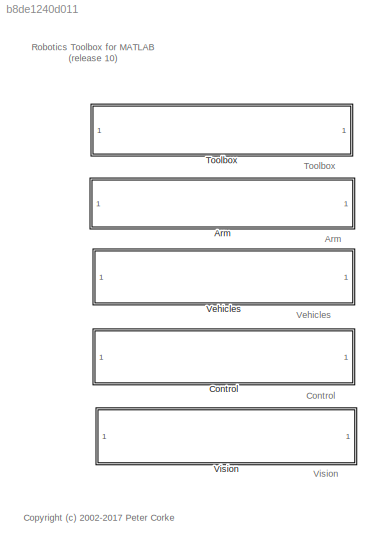
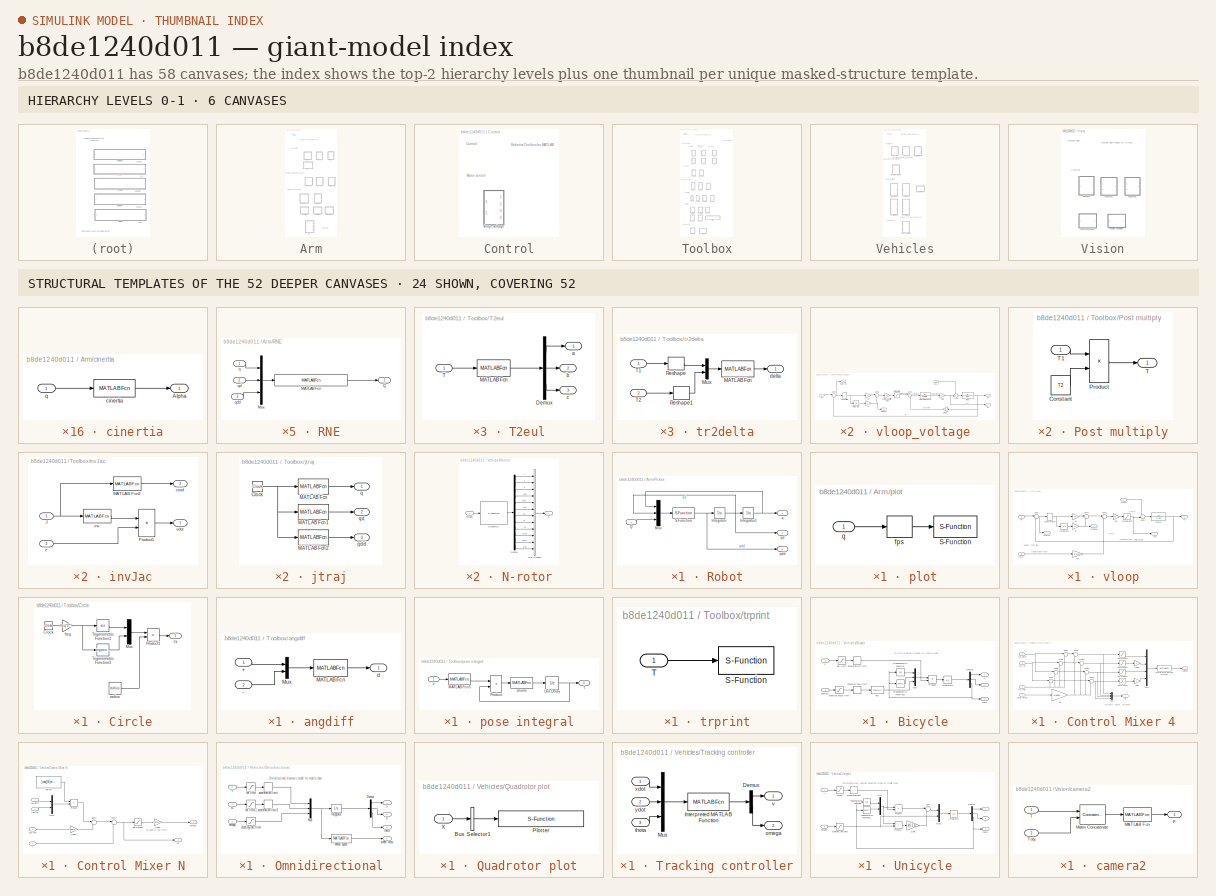
[diagram: thumbnail index - top-2 hierarchy levels (6 canvases) + 24 structural-template representatives of the remaining 52 canvases]
MODEL slx_b8de1240d011
KIND library
CONFIG AbsTol = auto
CONFIG EnableMultiTasking = on
CONFIG FixedStep = auto
CONFIG MaxStep = auto
CONFIG MinStep = auto
CONFIG RelTol = 1e-3
CONFIG SampleTimeConstraint = Unconstrained
CONFIG Solver = ode45
CONFIG SolverName = ode45
CONFIG StartTime = 0.0
CONFIG StopTime = 10
BLOCK [SubSystem] Arm
  Ports = []
  RequestExecContextInheritance = off
  Variant = off
BLOCK [SubSystem] Arm/RNE
  Ports = [3, 1]
  RequestExecContextInheritance = off
  Variant = off
BLOCK [MATLABFcn] Arm/RNE/MATLAB Fcn
  MATLABFcn = rne(robot, u(1:n)', u(n+1:2*n)', u(2*n+1:3*n)')
  OutputDimensions = robot.n
  Ports = [1, 1]
BLOCK [Mux] Arm/RNE/Mux
  DisplayOption = bar
  Inputs = 3
  Ports = [3, 1]
BLOCK [Outport] Arm/RNE/Q
  IconDisplay = Port number
BLOCK [Inport] Arm/RNE/q
  IconDisplay = Port number
BLOCK [Inport] Arm/RNE/qd
  IconDisplay = Port number
  Port = 2
BLOCK [Inport] Arm/RNE/qdd
  IconDisplay = Port number
  Port = 3
BLOCK [SubSystem] Arm/Robot
  Ports = [1, 3]
  RequestExecContextInheritance = off
  Variant = off
BLOCK [Integrator] Arm/Robot/Integrator
  Ports = [1, 1]
BLOCK [Integrator] Arm/Robot/Integrator1
  InitialCondition = q0
  Ports = [1, 1]
BLOCK [Mux] Arm/Robot/Mux
  DisplayOption = bar
  Inputs = 3
  Ports = [3, 1]
BLOCK [Inport] Arm/Robot/Q
  IconDisplay = Port number
BLOCK [S-Function] Arm/Robot/S-Function
  EnableBusSupport = off
  FunctionName = slaccel
  Parameters = robot
  Ports = [1, 1]
  SFcnIsStateOwnerBlock = off
  SFunctionDeploymentMode = off
BLOCK [Outport] Arm/Robot/q
  IconDisplay = Port number
BLOCK [Outport] Arm/Robot/qd
  IconDisplay = Port number
  Port = 2
BLOCK [Outport] Arm/Robot/qdd
  IconDisplay = Port number
  Port = 3
BLOCK [SubSystem] Arm/cinertia
  Ports = [1, 1]
  RequestExecContextInheritance = off
  Variant = off
BLOCK [Outport] Arm/cinertia/Alpha
  IconDisplay = Port number
BLOCK [MATLABFcn] Arm/cinertia/cinertia
  MATLABFcn = cinertia(robot,u')
  Output1D = off
  OutputDimensions = [6 6]
  Ports = [1, 1]
BLOCK [Inport] Arm/cinertia/q
  IconDisplay = Port number
BLOCK [SubSystem] Arm/fkine
  Ports = [1, 1]
  RequestExecContextInheritance = off
  Variant = off
BLOCK [MATLABFcn] Arm/fkine/MATLAB Fcn
  MATLABFcn = double(fkine(robot,u))
  Output1D = off
  OutputDimensions = [4 4]
  Ports = [1, 1]
BLOCK [Outport] Arm/fkine/T
  IconDisplay = Port number
BLOCK [Inport] Arm/fkine/q
  IconDisplay = Port number
BLOCK [SubSystem] Arm/gravload
  Ports = [1, 1]
  RequestExecContextInheritance = off
  Variant = off
BLOCK [Outport] Arm/gravload/g
  IconDisplay = Port number
BLOCK [MATLABFcn] Arm/gravload/gravload
  MATLABFcn = gravload(robot,u')
  Output1D = off
  OutputDimensions = [1 robot.n]
  Ports = [1, 1]
BLOCK [Inport] Arm/gravload/q
  IconDisplay = Port number
BLOCK [SubSystem] Arm/ijacob
  Ports = [1, 1]
  RequestExecContextInheritance = off
  Variant = off
BLOCK [Inport] Arm/ijacob/J
  IconDisplay = Port number
BLOCK [Outport] Arm/ijacob/Ji
  IconDisplay = Port number
BLOCK [MATLABFcn] Arm/ijacob/inverse jacobian
  MATLABFcn = inv(u)
  Output1D = off
  Ports = [1, 1]
BLOCK [SubSystem] Arm/ikine
  Ports = [1, 1]
  RequestExecContextInheritance = off
  Variant = off
BLOCK [Inport] Arm/ikine/T
  IconDisplay = Port number
BLOCK [MATLABFcn] Arm/ikine/ikine
  MATLABFcn = robot.ikine(u, q0, M, opt{:})
  Ports = [1, 1]
BLOCK [Outport] Arm/ikine/q
  IconDisplay = Port number
BLOCK [SubSystem] Arm/ikine6s
  Ports = [1, 1]
  RequestExecContextInheritance = off
  Variant = off
BLOCK [Inport] Arm/ikine6s/T
  IconDisplay = Port number
BLOCK [MATLABFcn] Arm/ikine6s/ikine6s
  MATLABFcn = robot.ikine6s(u,conf)
  Ports = [1, 1]
BLOCK [Outport] Arm/ikine6s/q
  IconDisplay = Port number
BLOCK [SubSystem] Arm/inertia
  Ports = [1, 1]
  RequestExecContextInheritance = off
  Variant = off
BLOCK [Outport] Arm/inertia/J
  IconDisplay = Port number
BLOCK [MATLABFcn] Arm/inertia/inertia
  MATLABFcn = inertia(robot,u')
  Output1D = off
  OutputDimensions = [robot.n robot.n]
  Ports = [1, 1]
BLOCK [Inport] Arm/inertia/q
  IconDisplay = Port number
BLOCK [SubSystem] Arm/jacob0 
  Ports = [1, 1]
  RequestExecContextInheritance = off
  Variant = off
BLOCK [Outport] Arm/jacob0 /J
  IconDisplay = Port number
BLOCK [MATLABFcn] Arm/jacob0 /MATLAB Fcn
  MATLABFcn = jacob0(robot,u)
  Output1D = off
  OutputDimensions = [6 n]
  Ports = [1, 1]
BLOCK [Inport] Arm/jacob0 /q
  IconDisplay = Port number
BLOCK [SubSystem] Arm/jacobn
  Ports = [1, 1]
  RequestExecContextInheritance = off
  Variant = off
BLOCK [Outport] Arm/jacobn/J
  IconDisplay = Port number
BLOCK [MATLABFcn] Arm/jacobn/MATLAB Fcn
  MATLABFcn = jacobe(robot,u)
  Output1D = off
  OutputDimensions = [6 n]
  Ports = [1, 1]
BLOCK [Inport] Arm/jacobn/q
  IconDisplay = Port number
BLOCK [SubSystem] Arm/plot
  Ports = [1]
  RequestExecContextInheritance = off
  Variant = off
BLOCK [S-Function] Arm/plot/S-Function
  EnableBusSupport = off
  FunctionName = slplotbot
  Parameters = robot,fps,holdplot
  Ports = [1]
  SFcnIsStateOwnerBlock = off
  SFunctionDeploymentMode = off
BLOCK [ZeroOrderHold] Arm/plot/fps
  SampleTime = 1/fps
BLOCK [Inport] Arm/plot/q
  IconDisplay = Port number
BLOCK [SubSystem] Arm/vloop
  Ports = [3, 4]
  RequestExecContextInheritance = off
  Variant = off
BLOCK [Outport] Arm/vloop/Integral
  IconDisplay = Port number
  Port = 4
BLOCK [Integrator] Arm/vloop/Integrator
  Ports = [1, 1]
BLOCK [Gain] Arm/vloop/Kff
  Gain = 1/Km
  OutDataTypeStr = Inherit: Inherit via internal rule
  ParamDataTypeStr = Inherit: Inherit via internal rule
  SaturateOnIntegerOverflow = off
BLOCK [Gain] Arm/vloop/Ki
  Gain = Ki
  OutDataTypeStr = Inherit: Inherit via internal rule
  ParamDataTypeStr = Inherit: Inherit via internal rule
  SaturateOnIntegerOverflow = off
BLOCK [Gain] Arm/vloop/Km
  Gain = Km
  OutDataTypeStr = Inherit: Inherit via internal rule
  ParamDataTypeStr = Inherit: Inherit via internal rule
  SaturateOnIntegerOverflow = off
BLOCK [Gain] Arm/vloop/Kv
  Gain = Kv
  OutDataTypeStr = Inherit: Inherit via internal rule
  ParamDataTypeStr = Inherit: Inherit via internal rule
  SaturateOnIntegerOverflow = off
BLOCK [Sum] Arm/vloop/Sum
  IconShape = round
  InputSameDT = off
  Inputs = |+-
  OutDataTypeStr = Inherit: Inherit via internal rule
  Ports = [2, 1]
  SaturateOnIntegerOverflow = off
BLOCK [Sum] Arm/vloop/Sum1
  IconShape = round
  InputSameDT = off
  Inputs = -+|
  OutDataTypeStr = Inherit: Inherit via internal rule
  Ports = [2, 1]
  SaturateOnIntegerOverflow = off
BLOCK [Sum] Arm/vloop/Sum2
  IconShape = round
  InputSameDT = off
  Inputs = |++
  OutDataTypeStr = Inherit: Inherit via internal rule
  Ports = [2, 1]
  SaturateOnIntegerOverflow = off
BLOCK [Sum] Arm/vloop/Sum3
  IconShape = round
  InputSameDT = off
  Inputs = |++
  OutDataTypeStr = Inherit: Inherit via internal rule
  Ports = [2, 1]
  SaturateOnIntegerOverflow = off
BLOCK [Delay] Arm/vloop/control time
  DelayLength = 1
  InputPortMap = u0
  InputProcessing = Inherited
  Ports = [1, 1]
  SampleTime = T
  UserDataPersistent = on
BLOCK [TransferFcn] Arm/vloop/motor
  ContinuousStateAttributes = 'qd'
  Denominator = [J B]
BLOCK [Outport] Arm/vloop/tau
  IconDisplay = Port number
  Port = 3
BLOCK [Inport] Arm/vloop/tau_d
  IconDisplay = Port number
  Port = 2
BLOCK [Inport] Arm/vloop/tau_ff
  IconDisplay = Port number
  Port = 3
BLOCK [Saturate] Arm/vloop/torque limit
  InputPortMap = u0
  LowerLimit = -tau_max
  Ports = [1, 1]
  UpperLimit = tau_max
BLOCK [Outport] Arm/vloop/w
  IconDisplay = Port number
BLOCK [Outport] Arm/vloop/w error
  IconDisplay = Port number
  Port = 2
BLOCK [Inport] Arm/vloop/w*
  IconDisplay = Port number
BLOCK [SubSystem] Control
  AncestorBlock = roblocks/Vehicles
  Ports = []
  RequestExecContextInheritance = off
  Variant = off
BLOCK [SubSystem] Control/vloop_voltage
  Ports = [2, 4]
  RequestExecContextInheritance = off
  Variant = off
BLOCK [Gain] Control/vloop_voltage/Gain
  Gain = Km
  OutDataTypeStr = Inherit: Inherit via internal rule
  ParamDataTypeStr = Inherit: Inherit via internal rule
  SaturateOnIntegerOverflow = off
BLOCK [Gain] Control/vloop_voltage/Gain1
  Gain = Km
  OutDataTypeStr = Inherit: Inherit via internal rule
  ParamDataTypeStr = Inherit: Inherit via internal rule
  SaturateOnIntegerOverflow = off
BLOCK [Integrator] Control/vloop_voltage/Integrator
  Ports = [1, 1]
BLOCK [Gain] Control/vloop_voltage/Ki
  Gain = Ki
  OutDataTypeStr = Inherit: Inherit via internal rule
  ParamDataTypeStr = Inherit: Inherit via internal rule
  SaturateOnIntegerOverflow = off
BLOCK [Gain] Control/vloop_voltage/Kv
  Gain = Kv
  OutDataTypeStr = Inherit: Inherit via internal rule
  ParamDataTypeStr = Inherit: Inherit via internal rule
  SaturateOnIntegerOverflow = off
BLOCK [TransferFcn] Control/vloop_voltage/Motor impedance
  Denominator = [Lm Rm]
BLOCK [Sum] Control/vloop_voltage/Sum
  IconShape = round
  InputSameDT = off
  Inputs = |+-
  OutDataTypeStr = Inherit: Inherit via internal rule
  Ports = [2, 1]
  SaturateOnIntegerOverflow = off
BLOCK [Sum] Control/vloop_voltage/Sum1
  IconShape = round
  InputSameDT = off
  Inputs = -+|
  OutDataTypeStr = Inherit: Inherit via internal rule
  Ports = [2, 1]
  SaturateOnIntegerOverflow = off
BLOCK [Sum] Control/vloop_voltage/Sum2
  IconShape = round
  InputSameDT = off
  Inputs = |++
  OutDataTypeStr = Inherit: Inherit via internal rule
  Ports = [2, 1]
  SaturateOnIntegerOverflow = off
BLOCK [Sum] Control/vloop_voltage/Sum3
  IconShape = round
  InputSameDT = off
  Inputs = |+-
  OutDataTypeStr = Inherit: Inherit via internal rule
  Ports = [2, 1]
  SaturateOnIntegerOverflow = off
BLOCK [Delay] Control/vloop_voltage/control time
  DelayLength = 1
  InputPortMap = u0
  InputProcessing = Inherited
  Ports = [1, 1]
  SampleTime = T
  UserDataPersistent = on
BLOCK [Outport] Control/vloop_voltage/integral
  IconDisplay = Port number
  Port = 4
BLOCK [TransferFcn] Control/vloop_voltage/motor
  ContinuousStateAttributes = 'qd'
  Denominator = [J B]
BLOCK [Outport] Control/vloop_voltage/qd
  IconDisplay = Port number
  Port = 2
BLOCK [Outport] Control/vloop_voltage/qd error
  IconDisplay = Port number
BLOCK [Inport] Control/vloop_voltage/qd*
  IconDisplay = Port number
BLOCK [Outport] Control/vloop_voltage/tau
  IconDisplay = Port number
  Port = 3
BLOCK [Inport] Control/vloop_voltage/tau_d
  IconDisplay = Port number
  Port = 2
BLOCK [Gain] Control/vloop_voltage/voltage amplifier gain
  Gain = Ka
  OutDataTypeStr = Inherit: Inherit via internal rule
  ParamDataTypeStr = Inherit: Inherit via internal rule
  SaturateOnIntegerOverflow = off
BLOCK [Saturate] Control/vloop_voltage/voltage limit
  InputPortMap = u0
  LowerLimit = -v_max
  Ports = [1, 1]
  UpperLimit = v_max
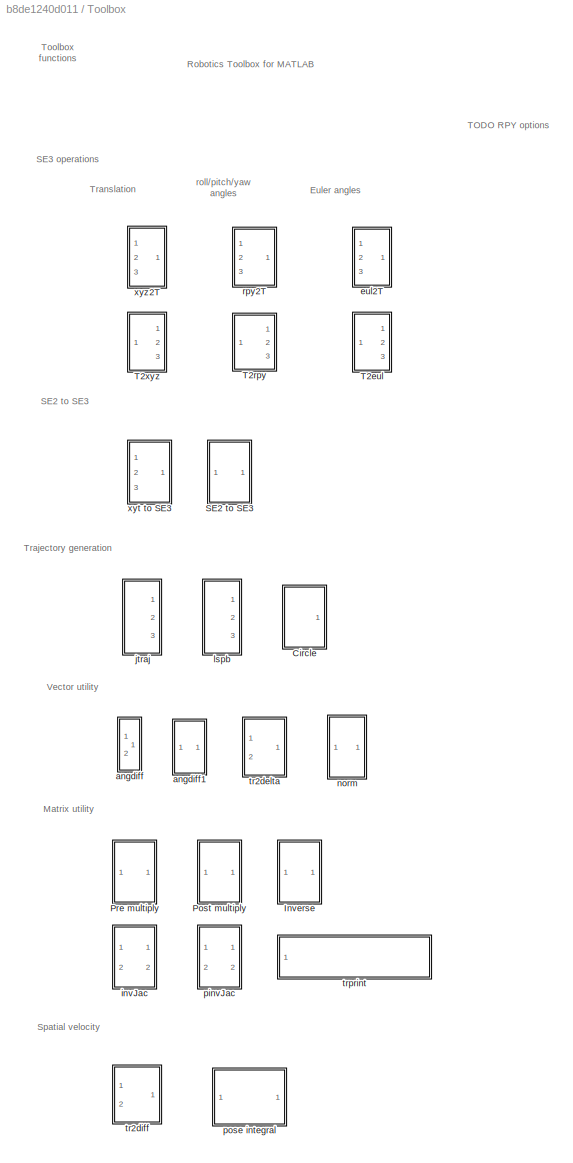
BLOCK [SubSystem] Toolbox
  Ports = []
  RequestExecContextInheritance = off
  Variant = off
BLOCK [SubSystem] Toolbox/Circle
  Ports = [0, 1]
  RequestExecContextInheritance = off
  Variant = off
BLOCK [Clock] Toolbox/Circle/Clock
BLOCK [Mux] Toolbox/Circle/Mux
  DisplayOption = bar
  Inputs = 2
  Ports = [2, 1]
BLOCK [Product] Toolbox/Circle/Product1
  InputSameDT = off
  OutDataTypeStr = Inherit: Inherit via internal rule
  Ports = [2, 1]
  SaturateOnIntegerOverflow = off
BLOCK [Trigonometry] Toolbox/Circle/Trigonometric Function1
  Operator = cos
  Ports = [1, 1]
BLOCK [Trigonometry] Toolbox/Circle/Trigonometric Function3
  Ports = [1, 1]
BLOCK [Gain] Toolbox/Circle/freq
  Gain = freq*2*pi
  OutDataTypeStr = Inherit: Inherit via internal rule
  ParamDataTypeStr = Inherit: Inherit via internal rule
  SaturateOnIntegerOverflow = off
BLOCK [Constant] Toolbox/Circle/radius
  Value = radius
BLOCK [Outport] Toolbox/Circle/xy
  IconDisplay = Port number
BLOCK [SubSystem] Toolbox/Inverse
  Ports = [1, 1]
  RequestExecContextInheritance = off
  Variant = off
BLOCK [MATLABFcn] Toolbox/Inverse/MATLAB Fcn
  MATLABFcn = inv(u)
  Output1D = off
  OutputDimensions = [4,4]
  Ports = [1, 1]
BLOCK [Inport] Toolbox/Inverse/T
  IconDisplay = Port number
BLOCK [Outport] Toolbox/Inverse/invT
  IconDisplay = Port number
BLOCK [SubSystem] Toolbox/Post multiply
  Ports = [1, 1]
  RequestExecContextInheritance = off
  Variant = off
BLOCK [Constant] Toolbox/Post multiply/Constant
  Value = T2
BLOCK [Product] Toolbox/Post multiply/Product
  InputSameDT = off
  Multiplication = Matrix(*)
  OutDataTypeStr = Inherit: Inherit via internal rule
  Ports = [2, 1]
  SaturateOnIntegerOverflow = off
BLOCK [Outport] Toolbox/Post multiply/T
  IconDisplay = Port number
BLOCK [Inport] Toolbox/Post multiply/T1
  IconDisplay = Port number
BLOCK [SubSystem] Toolbox/Pre multiply
  Ports = [1, 1]
  RequestExecContextInheritance = off
  Variant = off
BLOCK [Constant] Toolbox/Pre multiply/Constant
  Value = T
  VectorParams1D = off
BLOCK [Product] Toolbox/Pre multiply/Product
  InputSameDT = off
  Multiplication = Matrix(*)
  OutDataTypeStr = Inherit: Inherit via internal rule
  Ports = [2, 1]
  SaturateOnIntegerOverflow = off
BLOCK [Outport] Toolbox/Pre multiply/T
  IconDisplay = Port number
BLOCK [Inport] Toolbox/Pre multiply/T2
  IconDisplay = Port number
BLOCK [SubSystem] Toolbox/SE2 to SE3
  AncestorBlock = roblocks/Toolbox/SE2 to SE3
  Ports = [1, 1]
  RequestExecContextInheritance = off
  Variant = off
BLOCK [Inport] Toolbox/SE2 to SE3/SE2
  IconDisplay = Port number
BLOCK [MATLABFcn] Toolbox/SE2 to SE3/SE2->SE3
  MATLABFcn = transl(u(1), u(2), 0)*trotz(u(3))
  Output1D = off
  Ports = [1, 1]
BLOCK [Outport] Toolbox/SE2 to SE3/T
  IconDisplay = Port number
BLOCK [SubSystem] Toolbox/T2eul
  Ports = [1, 3]
  RequestExecContextInheritance = off
  Variant = off
BLOCK [Demux] Toolbox/T2eul/Demux
  Outputs = 3
  Ports = [1, 3]
BLOCK [MATLABFcn] Toolbox/T2eul/MATLAB Fcn
  MATLABFcn = tr2eul(u)
  OutputDimensions = 3
  Ports = [1, 1]
BLOCK [Inport] Toolbox/T2eul/T
  IconDisplay = Port number
BLOCK [Outport] Toolbox/T2eul/a
  IconDisplay = Port number
BLOCK [Outport] Toolbox/T2eul/b
  IconDisplay = Port number
  Port = 2
BLOCK [Outport] Toolbox/T2eul/c
  IconDisplay = Port number
  Port = 3
BLOCK [SubSystem] Toolbox/T2rpy
  Ports = [1, 3]
  RequestExecContextInheritance = off
  Variant = off
BLOCK [Demux] Toolbox/T2rpy/Demux
  Outputs = 3
  Ports = [1, 3]
BLOCK [MATLABFcn] Toolbox/T2rpy/MATLAB Fcn
  MATLABFcn = tr2rpy(u)
  OutputDimensions = 3
  Ports = [1, 1]
BLOCK [Inport] Toolbox/T2rpy/T
  IconDisplay = Port number
BLOCK [Outport] Toolbox/T2rpy/pitch
  IconDisplay = Port number
  Port = 2
BLOCK [Outport] Toolbox/T2rpy/roll
  IconDisplay = Port number
BLOCK [Outport] Toolbox/T2rpy/yaw
  IconDisplay = Port number
  Port = 3
BLOCK [SubSystem] Toolbox/T2xyz
  Ports = [1, 3]
  RequestExecContextInheritance = off
  Variant = off
BLOCK [Demux] Toolbox/T2xyz/Demux
  Outputs = 3
  Ports = [1, 3]
BLOCK [MATLABFcn] Toolbox/T2xyz/MATLAB Fcn
  MATLABFcn = transl(u)
  OutputDimensions = 3
  Ports = [1, 1]
BLOCK [Inport] Toolbox/T2xyz/T
  IconDisplay = Port number
BLOCK [Outport] Toolbox/T2xyz/x
  IconDisplay = Port number
BLOCK [Outport] Toolbox/T2xyz/y
  IconDisplay = Port number
  Port = 2
BLOCK [Outport] Toolbox/T2xyz/z
  IconDisplay = Port number
  Port = 3
BLOCK [SubSystem] Toolbox/angdiff
  Ports = [2, 1]
  RequestExecContextInheritance = off
  Variant = off
BLOCK [Inport] Toolbox/angdiff/+
  IconDisplay = Port number
BLOCK [Inport] Toolbox/angdiff/-
  IconDisplay = Port number
  Port = 2
BLOCK [MATLABFcn] Toolbox/angdiff/MATLAB Fcn
  MATLABFcn = angdiff(u(1), u(2))
  Ports = [1, 1]
BLOCK [Mux] Toolbox/angdiff/Mux
  DisplayOption = bar
  Inputs = 2
  Ports = [2, 1]
BLOCK [Outport] Toolbox/angdiff/d
  IconDisplay = Port number
BLOCK [SubSystem] Toolbox/angdiff1
  AncestorBlock = roblocks/Toolbox/angdiff
  Ports = [1, 1]
  RequestExecContextInheritance = off
  Variant = off
BLOCK [Inport] Toolbox/angdiff1/+
  IconDisplay = Port number
BLOCK [MATLABFcn] Toolbox/angdiff1/MATLAB Fcn
  MATLABFcn = angdiff(u)
  Ports = [1, 1]
BLOCK [Outport] Toolbox/angdiff1/d
  IconDisplay = Port number
BLOCK [SubSystem] Toolbox/eul2T
  Ports = [3, 1]
  RequestExecContextInheritance = off
  Variant = off
BLOCK [MATLABFcn] Toolbox/eul2T/MATLAB Fcn
  MATLABFcn = eul2tr(u')
  Output1D = off
  OutputDimensions = [4 4]
  Ports = [1, 1]
BLOCK [Mux] Toolbox/eul2T/Mux
  DisplayOption = bar
  Inputs = 3
  Ports = [3, 1]
BLOCK [Outport] Toolbox/eul2T/T
  IconDisplay = Port number
BLOCK [Inport] Toolbox/eul2T/a
  IconDisplay = Port number
BLOCK [Inport] Toolbox/eul2T/b
  IconDisplay = Port number
  Port = 2
BLOCK [Inport] Toolbox/eul2T/c
  IconDisplay = Port number
  Port = 3
BLOCK [SubSystem] Toolbox/invJac
  Ports = [2, 2]
  RequestExecContextInheritance = off
  Variant = off
BLOCK [Inport] Toolbox/invJac/J
  IconDisplay = Port number
BLOCK [MATLABFcn] Toolbox/invJac/MATLAB Fcn2
  MATLABFcn = cond(u)
  Output1D = off
  Ports = [1, 1]
BLOCK [Product] Toolbox/invJac/Product1
  Multiplication = Matrix(*)
  Ports = [2, 1]
BLOCK [Outport] Toolbox/invJac/cond
  IconDisplay = Port number
  Port = 2
BLOCK [Inport] Toolbox/invJac/e
  IconDisplay = Port number
  Port = 2
BLOCK [MATLABFcn] Toolbox/invJac/inv
  MATLABFcn = pinv(u)
  Output1D = off
  Ports = [1, 1]
BLOCK [Outport] Toolbox/invJac/vdot
  IconDisplay = Port number
BLOCK [SubSystem] Toolbox/jtraj
  Ports = [0, 3]
  RequestExecContextInheritance = off
  Variant = off
BLOCK [Clock] Toolbox/jtraj/Clock
BLOCK [MATLABFcn] Toolbox/jtraj/MATLAB Fcn
  MATLABFcn = interp1(t,q,min(u,tmax))
  OutputDimensions = n
  Ports = [1, 1]
  SampleTime = ts
BLOCK [MATLABFcn] Toolbox/jtraj/MATLAB Fcn1
  MATLABFcn = interp1(t,qd,min(u,tmax))
  OutputDimensions = n
  Ports = [1, 1]
  SampleTime = ts
BLOCK [MATLABFcn] Toolbox/jtraj/MATLAB Fcn2
  MATLABFcn = interp1(t,qdd,min(u,tmax))
  OutputDimensions = n
  Ports = [1, 1]
  SampleTime = ts
BLOCK [Outport] Toolbox/jtraj/q
  IconDisplay = Port number
BLOCK [Outport] Toolbox/jtraj/qd
  IconDisplay = Port number
  Port = 2
BLOCK [Outport] Toolbox/jtraj/qdd
  IconDisplay = Port number
  Port = 3
BLOCK [SubSystem] Toolbox/lspb
  Ports = [0, 3]
  RequestExecContextInheritance = off
  Variant = off
BLOCK [Clock] Toolbox/lspb/Clock
BLOCK [MATLABFcn] Toolbox/lspb/MATLAB Fcn
  MATLABFcn = interp1(t,q,u)
  OutputDimensions = n
  Ports = [1, 1]
BLOCK [MATLABFcn] Toolbox/lspb/MATLAB Fcn1
  MATLABFcn = interp1(t,qd,u)
  OutputDimensions = n
  Ports = [1, 1]
BLOCK [MATLABFcn] Toolbox/lspb/MATLAB Fcn2
  MATLABFcn = interp1(t,qdd,u)
  OutputDimensions = n
  Ports = [1, 1]
BLOCK [Outport] Toolbox/lspb/q
  IconDisplay = Port number
BLOCK [Outport] Toolbox/lspb/qd
  IconDisplay = Port number
  Port = 2
BLOCK [Outport] Toolbox/lspb/qdd
  IconDisplay = Port number
  Port = 3
BLOCK [SubSystem] Toolbox/norm
  Ports = [1, 1]
  RequestExecContextInheritance = off
  Variant = off
BLOCK [Outport] Toolbox/norm/n
  IconDisplay = Port number
BLOCK [MATLABFcn] Toolbox/norm/norm
  MATLABFcn = norm(u)
  Ports = [1, 1]
BLOCK [Inport] Toolbox/norm/v
  IconDisplay = Port number
BLOCK [SubSystem] Toolbox/pinvJac
  Ports = [2, 2]
  RequestExecContextInheritance = off
  Variant = off
BLOCK [Inport] Toolbox/pinvJac/J
  IconDisplay = Port number
BLOCK [MATLABFcn] Toolbox/pinvJac/MATLAB Fcn2
  MATLABFcn = cond(u)
  Output1D = off
  Ports = [1, 1]
BLOCK [Product] Toolbox/pinvJac/Product1
  Multiplication = Matrix(*)
  Ports = [2, 1]
BLOCK [Outport] Toolbox/pinvJac/cond
  IconDisplay = Port number
  Port = 2
BLOCK [Inport] Toolbox/pinvJac/e
  IconDisplay = Port number
  Port = 2
BLOCK [MATLABFcn] Toolbox/pinvJac/pinv
  MATLABFcn = pinv(u)
  Output1D = off
  Ports = [1, 1]
BLOCK [Outport] Toolbox/pinvJac/vdot
  IconDisplay = Port number
BLOCK [SubSystem] Toolbox/pose integral
  Ports = [1, 1]
  RequestExecContextInheritance = off
  Variant = off
BLOCK [MATLABFcn] Toolbox/pose integral/MATLAB Fcn3
  MATLABFcn = delta2tr(u*dt)
  Output1D = off
  Ports = [1, 1]
BLOCK [Product] Toolbox/pose integral/Product
  InputSameDT = off
  Multiplication = Matrix(*)
  OutDataTypeStr = Inherit: Inherit via internal rule
  Ports = [2, 1]
  SaturateOnIntegerOverflow = off
BLOCK [Outport] Toolbox/pose integral/T
  IconDisplay = Port number
BLOCK [UnitDelay] Toolbox/pose integral/Unit Delay
  InitialCondition = T0
  SampleTime = dt
BLOCK [MATLABFcn] Toolbox/pose integral/trnorm
  MATLABFcn = trnorm(u)
  Output1D = off
  Ports = [1, 1]
BLOCK [Inport] Toolbox/pose integral/v
  IconDisplay = Port number
BLOCK [SubSystem] Toolbox/rpy2T
  Ports = [3, 1]
  RequestExecContextInheritance = off
  Variant = off
BLOCK [MATLABFcn] Toolbox/rpy2T/MATLAB Fcn
  MATLABFcn = rpy2tr(u')
  Output1D = off
  OutputDimensions = [4 4]
  Ports = [1, 1]
BLOCK [Mux] Toolbox/rpy2T/Mux
  DisplayOption = bar
  Inputs = 3
  Ports = [3, 1]
BLOCK [Outport] Toolbox/rpy2T/T
  IconDisplay = Port number
BLOCK [Inport] Toolbox/rpy2T/pitch
  IconDisplay = Port number
  Port = 2
BLOCK [Inport] Toolbox/rpy2T/roll
  IconDisplay = Port number
BLOCK [Inport] Toolbox/rpy2T/yaw
  IconDisplay = Port number
  Port = 3
BLOCK [SubSystem] Toolbox/tr2delta
  AncestorBlock = roblocks/Toolbox/T2rpy
  Ports = [2, 1]
  RequestExecContextInheritance = off
  Variant = off
BLOCK [MATLABFcn] Toolbox/tr2delta/MATLAB Fcn
  MATLABFcn = tr2delta(reshape(u(1:16),4,4), reshape(u(17:32),4,4))
  OutputDimensions = 6
  Ports = [1, 1]
BLOCK [Mux] Toolbox/tr2delta/Mux
  DisplayOption = bar
  Inputs = 2
  Ports = [2, 1]
BLOCK [Reshape] Toolbox/tr2delta/Reshape
  Ports = [1, 1]
BLOCK [Reshape] Toolbox/tr2delta/Reshape1
  Ports = [1, 1]
BLOCK [Inport] Toolbox/tr2delta/T1
  IconDisplay = Port number
BLOCK [Inport] Toolbox/tr2delta/T2
  IconDisplay = Port number
  Port = 2
BLOCK [Outport] Toolbox/tr2delta/delta
  IconDisplay = Port number
BLOCK [SubSystem] Toolbox/tr2diff
  Ports = [2, 1]
  RequestExecContextInheritance = off
  Variant = off
BLOCK [MATLABFcn] Toolbox/tr2diff/MATLAB Fcn
  MATLABFcn = tr2delta(reshape(u(1:16),4,4), reshape(u(17:32),4,4))
  OutputDimensions = 6
  Ports = [1, 1]
BLOCK [Mux] Toolbox/tr2diff/Mux
  DisplayOption = bar
  Inputs = 2
  Ports = [2, 1]
BLOCK [Reshape] Toolbox/tr2diff/Reshape
  Ports = [1, 1]
BLOCK [Reshape] Toolbox/tr2diff/Reshape1
  Ports = [1, 1]
BLOCK [Inport] Toolbox/tr2diff/T1
  IconDisplay = Port number
BLOCK [Inport] Toolbox/tr2diff/T2
  IconDisplay = Port number
  Port = 2
BLOCK [Outport] Toolbox/tr2diff/dx
  IconDisplay = Port number
BLOCK [SubSystem] Toolbox/trprint
  Ports = [1]
  RequestExecContextInheritance = off
  Variant = off
BLOCK [S-Function] Toolbox/trprint/S-Function
  EnableBusSupport = off
  FunctionName = sltrprint
  Parameters = options
  Ports = [1]
  SFcnIsStateOwnerBlock = off
  SFunctionDeploymentMode = off
BLOCK [Inport] Toolbox/trprint/T
  IconDisplay = Port number
BLOCK [SubSystem] Toolbox/xyt to SE3
  Ports = [3, 1]
  RequestExecContextInheritance = off
  Variant = off
BLOCK [Mux] Toolbox/xyt to SE3/Mux
  DisplayOption = bar
  Inputs = 3
  Ports = [3, 1]
BLOCK [MATLABFcn] Toolbox/xyt to SE3/SE2->SE3
  MATLABFcn = transl(u(1), u(2), 0)*trotz(u(3))
  Output1D = off
  Ports = [1, 1]
BLOCK [Outport] Toolbox/xyt to SE3/T
  IconDisplay = Port number
BLOCK [Inport] Toolbox/xyt to SE3/theta
  IconDisplay = Port number
  Port = 3
BLOCK [Inport] Toolbox/xyt to SE3/x
  IconDisplay = Port number
BLOCK [Inport] Toolbox/xyt to SE3/y
  IconDisplay = Port number
  Port = 2
BLOCK [SubSystem] Toolbox/xyz2T
  Ports = [3, 1]
  RequestExecContextInheritance = off
  Variant = off
BLOCK [MATLABFcn] Toolbox/xyz2T/MATLAB Fcn
  MATLABFcn = transl(u)
  Output1D = off
  OutputDimensions = [4 4]
  Ports = [1, 1]
BLOCK [Mux] Toolbox/xyz2T/Mux
  DisplayOption = bar
  Inputs = 3
  Ports = [3, 1]
BLOCK [Outport] Toolbox/xyz2T/T
  IconDisplay = Port number
BLOCK [Inport] Toolbox/xyz2T/x
  IconDisplay = Port number
BLOCK [Inport] Toolbox/xyz2T/y
  IconDisplay = Port number
  Port = 2
BLOCK [Inport] Toolbox/xyz2T/z
  IconDisplay = Port number
  Port = 3
BLOCK [SubSystem] Vehicles
  Ports = []
  RequestExecContextInheritance = off
  Variant = off
BLOCK [SubSystem] Vehicles/Bicycle
  Ports = [2, 3]
  RequestExecContextInheritance = off
  Variant = off
BLOCK [Demux] Vehicles/Bicycle/Demux
  DisplayOption = bar
  Outputs = 3
  Ports = [1, 3]
BLOCK [Fcn] Vehicles/Bicycle/Fcn
  Expr = tan(u)/L
BLOCK [Integrator] Vehicles/Bicycle/Integrator1
  InitialCondition = x0
  Ports = [1, 1]
BLOCK [Mux] Vehicles/Bicycle/Mux
  DisplayOption = bar
  Inputs = 3
  Ports = [3, 1]
BLOCK [Product] Vehicles/Bicycle/Product
  InputSameDT = off
  OutDataTypeStr = Inherit: Inherit via internal rule
  Ports = [2, 1]
  SaturateOnIntegerOverflow = off
BLOCK [Trigonometry] Vehicles/Bicycle/Trigonometric Function
  Operator = cos
  Ports = [1, 1]
BLOCK [Trigonometry] Vehicles/Bicycle/Trigonometric Function2
  Ports = [1, 1]
BLOCK [RateLimiter] Vehicles/Bicycle/acceleration limit
  FallingSlewLimit = -accel
  RisingSlewLimit = accel
  SampleTimeMode = inherited
BLOCK [Inport] Vehicles/Bicycle/gamma
  IconDisplay = Port number
  Port = 2
BLOCK [Saturate] Vehicles/Bicycle/steering angle limit
  InputPortMap = u0
  LowerLimit = -alim
  Ports = [1, 1]
  UpperLimit = alim
BLOCK [RateLimiter] Vehicles/Bicycle/steering rate limit
  FallingSlewLimit = -steer_rate
  RisingSlewLimit = steer_rate
  SampleTimeMode = inherited
BLOCK [Outport] Vehicles/Bicycle/theta
  IconDisplay = Port number
  Port = 3
BLOCK [Inport] Vehicles/Bicycle/v
  IconDisplay = Port number
BLOCK [Saturate] Vehicles/Bicycle/vel limit
  InputPortMap = u0
  LowerLimit = -vlim
  Ports = [1, 1]
  UpperLimit = vlim
BLOCK [Outport] Vehicles/Bicycle/x
  IconDisplay = Port number
BLOCK [Outport] Vehicles/Bicycle/y
  IconDisplay = Port number
  Port = 2
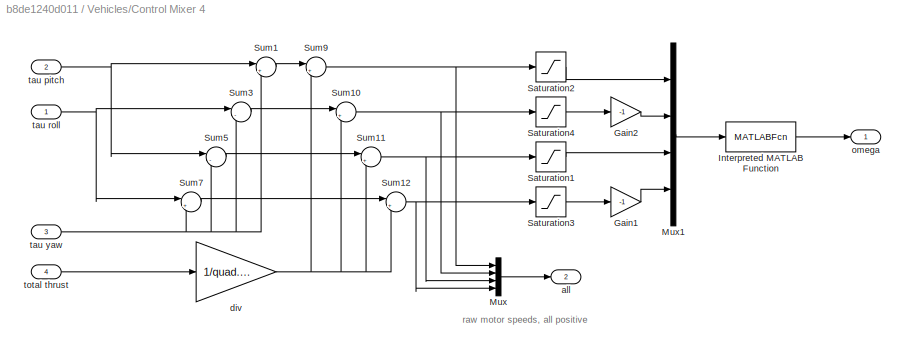
BLOCK [SubSystem] Vehicles/Control Mixer 4
  Ports = [4, 2]
  RequestExecContextInheritance = off
  Variant = off
BLOCK [Gain] Vehicles/Control Mixer 4/Gain1
  Gain = -1
  OutDataTypeStr = Inherit: Inherit via internal rule
  ParamDataTypeStr = Inherit: Inherit via internal rule
  SaturateOnIntegerOverflow = off
BLOCK [Gain] Vehicles/Control Mixer 4/Gain2
  Gain = -1
  OutDataTypeStr = Inherit: Inherit via internal rule
  ParamDataTypeStr = Inherit: Inherit via internal rule
  SaturateOnIntegerOverflow = off
BLOCK [MATLABFcn] Vehicles/Control Mixer 4/Interpreted MATLAB Function
  MATLABFcn = sign(u) .* sqrt(abs(u)/quad.b)
  Ports = [1, 1]
BLOCK [Mux] Vehicles/Control Mixer 4/Mux
  DisplayOption = bar
  Ports = [4, 1]
BLOCK [Mux] Vehicles/Control Mixer 4/Mux1
  DisplayOption = bar
  Ports = [4, 1]
BLOCK [Saturate] Vehicles/Control Mixer 4/Saturation1
  InputPortMap = u0
  LowerLimit = minrot
  Ports = [1, 1]
  UpperLimit = maxrot
BLOCK [Saturate] Vehicles/Control Mixer 4/Saturation2
  InputPortMap = u0
  LowerLimit = minrot
  Ports = [1, 1]
  UpperLimit = maxrot
BLOCK [Saturate] Vehicles/Control Mixer 4/Saturation3
  InputPortMap = u0
  LowerLimit = minrot
  Ports = [1, 1]
  UpperLimit = maxrot
BLOCK [Saturate] Vehicles/Control Mixer 4/Saturation4
  InputPortMap = u0
  LowerLimit = minrot
  Ports = [1, 1]
  UpperLimit = maxrot
BLOCK [Sum] Vehicles/Control Mixer 4/Sum1
  IconShape = round
  Inputs = |++
  Ports = [2, 1]
BLOCK [Sum] Vehicles/Control Mixer 4/Sum10
  IconShape = round
  Inputs = |++
  Ports = [2, 1]
BLOCK [Sum] Vehicles/Control Mixer 4/Sum11
  IconShape = round
  Inputs = |++
  Ports = [2, 1]
BLOCK [Sum] Vehicles/Control Mixer 4/Sum12
  IconShape = round
  Inputs = |++
  Ports = [2, 1]
BLOCK [Sum] Vehicles/Control Mixer 4/Sum3
  IconShape = round
  Inputs = |--
  Ports = [2, 1]
BLOCK [Sum] Vehicles/Control Mixer 4/Sum5
  IconShape = round
  Inputs = |-+
  Ports = [2, 1]
BLOCK [Sum] Vehicles/Control Mixer 4/Sum7
  IconShape = round
  Inputs = |+-
  Ports = [2, 1]
BLOCK [Sum] Vehicles/Control Mixer 4/Sum9
  IconShape = round
  Inputs = |++
  Ports = [2, 1]
BLOCK [Outport] Vehicles/Control Mixer 4/all
  IconDisplay = Port number
  Port = 2
BLOCK [Gain] Vehicles/Control Mixer 4/div
  Gain = 1/quad.nrotors
  OutDataTypeStr = Inherit: Inherit via internal rule
  ParamDataTypeStr = Inherit: Inherit via internal rule
  SaturateOnIntegerOverflow = off
BLOCK [Outport] Vehicles/Control Mixer 4/omega
  IconDisplay = Port number
BLOCK [Inport] Vehicles/Control Mixer 4/tau pitch
  IconDisplay = Port number
  Port = 2
BLOCK [Inport] Vehicles/Control Mixer 4/tau roll
  IconDisplay = Port number
BLOCK [Inport] Vehicles/Control Mixer 4/tau yaw
  IconDisplay = Port number
  Port = 3
BLOCK [Inport] Vehicles/Control Mixer 4/total thrust
  IconDisplay = Port number
  Port = 4
BLOCK [SubSystem] Vehicles/Control Mixer N
  Ports = [4, 2]
  RequestExecContextInheritance = off
  Variant = off
BLOCK [Gain] Vehicles/Control Mixer N/Gain3
  Gain = (mod([1:nrotors],2)==1)*2-1
  OutDataTypeStr = Inherit: Inherit via internal rule
  ParamDataTypeStr = Inherit: Inherit via internal rule
  SaturateOnIntegerOverflow = off
BLOCK [Gain] Vehicles/Control Mixer N/Gain4
  Gain = (mod([1:nrotors],2)==1)*2-1
  OutDataTypeStr = Inherit: Inherit via internal rule
  ParamDataTypeStr = Inherit: Inherit via internal rule
  SaturateOnIntegerOverflow = off
BLOCK [Mux] Vehicles/Control Mixer N/Mux1
  DisplayOption = bar
  Inputs = 2
  Ports = [2, 1]
BLOCK [Product] Vehicles/Control Mixer N/Product
  InputSameDT = off
  Multiplication = Matrix(*)
  OutDataTypeStr = Inherit: Inherit via internal rule
  Ports = [2, 1]
  RndMeth = Floor
  SaturateOnIntegerOverflow = off
BLOCK [Saturate] Vehicles/Control Mixer N/Saturation5
  InputPortMap = u0
  LowerLimit = wmin
  Ports = [1, 1]
  UpperLimit = wmax
BLOCK [Sum] Vehicles/Control Mixer N/Sum1
  IconShape = round
  Inputs = |++
  Ports = [2, 1]
BLOCK [Sum] Vehicles/Control Mixer N/Sum2
  IconShape = round
  Inputs = |++
  Ports = [2, 1]
BLOCK [Inport] Vehicles/Control Mixer N/T
  IconDisplay = Port number
  Port = 4
BLOCK [Outport] Vehicles/Control Mixer N/all
  IconDisplay = Port number
  Port = 2
BLOCK [Outport] Vehicles/Control Mixer N/omega
  IconDisplay = Port number
BLOCK [Constant] Vehicles/Control Mixer N/sin//cos
  SampleTime = 0
  Value = [cos([0:(nrotors-1)]'*2*pi)  -sin([0:(nrotors-1)]'*2*pi)]
  VectorParams1D = off
BLOCK [Inport] Vehicles/Control Mixer N/tau pitch
  IconDisplay = Port number
  Port = 2
BLOCK [Inport] Vehicles/Control Mixer N/tau roll
  IconDisplay = Port number
BLOCK [Inport] Vehicles/Control Mixer N/tau yaw
  IconDisplay = Port number
  Port = 3
BLOCK [SubSystem] Vehicles/N-rotor
  Ports = [1, 1]
  RequestExecContextInheritance = off
  Variant = off
BLOCK [BusCreator] Vehicles/N-rotor/Bus Creator
  DisplayOption = bar
  InheritFromInputs = on
  Inputs = 'X','Y','Z','yaw','pitch','roll','dx','dy','dz','dyaw','dpitch','droll'
  Ports = [12, 1]
BLOCK [Demux] Vehicles/N-rotor/Demux
  Outputs = 12
  Ports = [1, 12]
BLOCK [S-Function] Vehicles/N-rotor/Dynamics
  EnableBusSupport = off
  FunctionName = nrotor_dynamics
  Parameters = quad, x0, ground
  Ports = [1, 1]
  SFcnIsStateOwnerBlock = off
  SFunctionDeploymentMode = off
BLOCK [Outport] Vehicles/N-rotor/X
  IconDisplay = Port number
BLOCK [Inport] Vehicles/N-rotor/omega
  IconDisplay = Port number
BLOCK [SubSystem] Vehicles/Omnidirectional
  AncestorBlock = roblocks/Dynamics/Bicycle
  Ports = [3, 4]
  RequestExecContextInheritance = off
  Variant = off
BLOCK [Demux] Vehicles/Omnidirectional/Demux
  DisplayOption = bar
  Outputs = 3
  Ports = [1, 3]
BLOCK [Integrator] Vehicles/Omnidirectional/Integrator
  InitialCondition = x0
  Ports = [1, 1]
BLOCK [Mux] Vehicles/Omnidirectional/Mux
  DisplayOption = bar
  Inputs = 3
  Ports = [3, 1]
BLOCK [MATLABFcn] Vehicles/Omnidirectional/Wheel speed
  MATLABFcn = sum(bsxfun(@minus, u(1:2), skew(u(3))*P) .* [ones(1,length(alpha)); cot(alpha)])/R
  Ports = [1, 1]
BLOCK [RateLimiter] Vehicles/Omnidirectional/acceleration limit
  FallingSlewLimit = -accel
  RisingSlewLimit = accel
  SampleTimeMode = inherited
BLOCK [RateLimiter] Vehicles/Omnidirectional/acceleration limit1
  FallingSlewLimit = -accel
  RisingSlewLimit = accel
  SampleTimeMode = inherited
BLOCK [Inport] Vehicles/Omnidirectional/omega
  IconDisplay = Port number
  Port = 3
BLOCK [Saturate] Vehicles/Omnidirectional/steering rate limit
  InputPortMap = u0
  LowerLimit = -alim
  Ports = [1, 1]
  UpperLimit = alim
BLOCK [Outport] Vehicles/Omnidirectional/theta
  IconDisplay = Port number
  Port = 3
BLOCK [Inport] Vehicles/Omnidirectional/v
  IconDisplay = Port number
BLOCK [Inport] Vehicles/Omnidirectional/v1
  IconDisplay = Port number
  Port = 2
BLOCK [Saturate] Vehicles/Omnidirectional/vel limit
  InputPortMap = u0
  LowerLimit = -vlim
  Ports = [1, 1]
  UpperLimit = vlim
BLOCK [Saturate] Vehicles/Omnidirectional/vel limit1
  InputPortMap = u0
  LowerLimit = -vlim
  Ports = [1, 1]
  UpperLimit = vlim
BLOCK [Outport] Vehicles/Omnidirectional/wheel rates
  IconDisplay = Port number
  Port = 4
BLOCK [Outport] Vehicles/Omnidirectional/x
  IconDisplay = Port number
BLOCK [Outport] Vehicles/Omnidirectional/y
  IconDisplay = Port number
  Port = 2
BLOCK [SubSystem] Vehicles/Quadrotor
  Ports = [1, 1]
  RequestExecContextInheritance = off
  Variant = off
BLOCK [SubSystem] Vehicles/Quadrotor plot
  Ports = [1]
  RequestExecContextInheritance = off
  Variant = off
BLOCK [BusSelector] Vehicles/Quadrotor plot/Bus Selector1
  OutputAsBus = on
  OutputSignals = X,Y,Z,yaw,pitch,roll
  Ports = [1, 1]
BLOCK [S-Function] Vehicles/Quadrotor plot/Plotter
  EnableBusSupport = off
  FunctionName = quadrotor_plot
  Parameters = [xydim, zdim], 1, 1,quad
  Ports = [1]
  SFcnIsStateOwnerBlock = off
  SFunctionDeploymentMode = off
BLOCK [Inport] Vehicles/Quadrotor plot/X
  IconDisplay = Port number
BLOCK [BusCreator] Vehicles/Quadrotor/Bus Creator
  DisplayOption = bar
  InheritFromInputs = on
  Inputs = 'X','Y','Z','yaw','pitch','roll','dx','dy','dz','dyaw','dpitch','droll'
  Ports = [12, 1]
BLOCK [Demux] Vehicles/Quadrotor/Demux
  Outputs = 12
  Ports = [1, 12]
BLOCK [S-Function] Vehicles/Quadrotor/Dynamics
  EnableBusSupport = off
  FunctionName = quadrotor_dynamics
  Parameters = quad, x0, groundflag
  Ports = [1, 1]
  SFcnIsStateOwnerBlock = off
  SFunctionDeploymentMode = off
BLOCK [Outport] Vehicles/Quadrotor/X
  IconDisplay = Port number
BLOCK [Inport] Vehicles/Quadrotor/omega
  IconDisplay = Port number
BLOCK [SubSystem] Vehicles/Tracking controller
  Ports = [3, 2]
  RequestExecContextInheritance = off
  Variant = off
BLOCK [Demux] Vehicles/Tracking controller/Demux
  DisplayOption = bar
  Outputs = 2
  Ports = [1, 2]
BLOCK [MATLABFcn] Vehicles/Tracking controller/Interpreted MATLAB Function
  MATLABFcn = [cos(u(3)) sin(u(3)); -1/a*sin(u(3)) 1/a*cos(u(3))] * u(1:2)
  Ports = [1, 1]
BLOCK [Mux] Vehicles/Tracking controller/Mux
  DisplayOption = bar
  Inputs = 3
  Ports = [3, 1]
BLOCK [Outport] Vehicles/Tracking controller/omega
  IconDisplay = Port number
  Port = 2
BLOCK [Inport] Vehicles/Tracking controller/theta
  IconDisplay = Port number
  Port = 3
BLOCK [Outport] Vehicles/Tracking controller/v
  IconDisplay = Port number
BLOCK [Inport] Vehicles/Tracking controller/xdot
  IconDisplay = Port number
BLOCK [Inport] Vehicles/Tracking controller/ydot
  IconDisplay = Port number
  Port = 2
BLOCK [SubSystem] Vehicles/Unicycle
  AncestorBlock = roblocks/Dynamics/Bicycle
  Ports = [2, 3]
  RequestExecContextInheritance = off
  Variant = off
BLOCK [Demux] Vehicles/Unicycle/Demux
  DisplayOption = bar
  Outputs = 3
  Ports = [1, 3]
BLOCK [Gain] Vehicles/Unicycle/Gain
  Gain = a*[-1 1]
  OutDataTypeStr = Inherit: Inherit via internal rule
  ParamDataTypeStr = Inherit: Inherit via internal rule
  SaturateOnIntegerOverflow = off
BLOCK [Integrator] Vehicles/Unicycle/Integrator
  Ports = [1, 1]
BLOCK [Mux] Vehicles/Unicycle/Mux
  DisplayOption = bar
  Inputs = 2
  Ports = [2, 1]
BLOCK [Mux] Vehicles/Unicycle/Mux1
  DisplayOption = bar
  Inputs = 2
  Ports = [2, 1]
BLOCK [Product] Vehicles/Unicycle/Product
  InputSameDT = off
  OutDataTypeStr = Inherit: Inherit via internal rule
  Ports = [2, 1]
  SaturateOnIntegerOverflow = off
BLOCK [Product] Vehicles/Unicycle/Product1
  InputSameDT = off
  OutDataTypeStr = Inherit: Inherit via internal rule
  Ports = [2, 1]
  SaturateOnIntegerOverflow = off
BLOCK [Sum] Vehicles/Unicycle/Sum
  IconShape = round
  InputSameDT = off
  Inputs = |++
  OutDataTypeStr = Inherit: Inherit via internal rule
  Ports = [2, 1]
  SaturateOnIntegerOverflow = off
BLOCK [Trigonometry] Vehicles/Unicycle/Trigonometric Function
  Operator = cos
  Ports = [1, 1]
BLOCK [Trigonometry] Vehicles/Unicycle/Trigonometric Function2
  Ports = [1, 1]
BLOCK [RateLimiter] Vehicles/Unicycle/acceleration limit
  FallingSlewLimit = -accel
  RisingSlewLimit = accel
  SampleTimeMode = inherited
BLOCK [Inport] Vehicles/Unicycle/omega
  IconDisplay = Port number
  Port = 2
BLOCK [Saturate] Vehicles/Unicycle/steering rate limit
  InputPortMap = u0
  LowerLimit = -alim
  Ports = [1, 1]
  UpperLimit = alim
BLOCK [Outport] Vehicles/Unicycle/theta
  IconDisplay = Port number
  Port = 3
BLOCK [Inport] Vehicles/Unicycle/v
  IconDisplay = Port number
BLOCK [Saturate] Vehicles/Unicycle/vel limit
  InputPortMap = u0
  LowerLimit = -vlim
  Ports = [1, 1]
  UpperLimit = vlim
BLOCK [Outport] Vehicles/Unicycle/x
  IconDisplay = Port number
BLOCK [Outport] Vehicles/Unicycle/y
  IconDisplay = Port number
  Port = 2
BLOCK [SubSystem] Vehicles/vloop_voltage
  Ports = [2, 4]
  RequestExecContextInheritance = off
  Variant = off
BLOCK [Gain] Vehicles/vloop_voltage/Gain
  Gain = Km
  OutDataTypeStr = Inherit: Inherit via internal rule
  ParamDataTypeStr = Inherit: Inherit via internal rule
  SaturateOnIntegerOverflow = off
BLOCK [Gain] Vehicles/vloop_voltage/Gain1
  Gain = Km
  OutDataTypeStr = Inherit: Inherit via internal rule
  ParamDataTypeStr = Inherit: Inherit via internal rule
  SaturateOnIntegerOverflow = off
BLOCK [Integrator] Vehicles/vloop_voltage/Integrator
  Ports = [1, 1]
BLOCK [Gain] Vehicles/vloop_voltage/Ki
  Gain = Ki
  OutDataTypeStr = Inherit: Inherit via internal rule
  ParamDataTypeStr = Inherit: Inherit via internal rule
  SaturateOnIntegerOverflow = off
BLOCK [Gain] Vehicles/vloop_voltage/Kv
  Gain = Kv
  OutDataTypeStr = Inherit: Inherit via internal rule
  ParamDataTypeStr = Inherit: Inherit via internal rule
  SaturateOnIntegerOverflow = off
BLOCK [TransferFcn] Vehicles/vloop_voltage/Motor impedance
  Denominator = [Lm Rm]
BLOCK [Sum] Vehicles/vloop_voltage/Sum
  IconShape = round
  InputSameDT = off
  Inputs = |+-
  OutDataTypeStr = Inherit: Inherit via internal rule
  Ports = [2, 1]
  SaturateOnIntegerOverflow = off
BLOCK [Sum] Vehicles/vloop_voltage/Sum1
  IconShape = round
  InputSameDT = off
  Inputs = -+|
  OutDataTypeStr = Inherit: Inherit via internal rule
  Ports = [2, 1]
  SaturateOnIntegerOverflow = off
BLOCK [Sum] Vehicles/vloop_voltage/Sum2
  IconShape = round
  InputSameDT = off
  Inputs = |++
  OutDataTypeStr = Inherit: Inherit via internal rule
  Ports = [2, 1]
  SaturateOnIntegerOverflow = off
BLOCK [Sum] Vehicles/vloop_voltage/Sum3
  IconShape = round
  InputSameDT = off
  Inputs = |+-
  OutDataTypeStr = Inherit: Inherit via internal rule
  Ports = [2, 1]
  SaturateOnIntegerOverflow = off
BLOCK [Delay] Vehicles/vloop_voltage/control time
  DelayLength = 1
  InputPortMap = u0
  InputProcessing = Inherited
  Ports = [1, 1]
  SampleTime = T
  UserDataPersistent = on
BLOCK [Outport] Vehicles/vloop_voltage/integral
  IconDisplay = Port number
  Port = 4
BLOCK [TransferFcn] Vehicles/vloop_voltage/motor
  ContinuousStateAttributes = 'qd'
  Denominator = [J B]
BLOCK [Outport] Vehicles/vloop_voltage/qd
  IconDisplay = Port number
  Port = 2
BLOCK [Outport] Vehicles/vloop_voltage/qd error
  IconDisplay = Port number
BLOCK [Inport] Vehicles/vloop_voltage/qd*
  IconDisplay = Port number
BLOCK [Outport] Vehicles/vloop_voltage/tau
  IconDisplay = Port number
  Port = 3
BLOCK [Inport] Vehicles/vloop_voltage/tau_d
  IconDisplay = Port number
  Port = 2
BLOCK [Gain] Vehicles/vloop_voltage/voltage amplifier gain
  Gain = Ka
  OutDataTypeStr = Inherit: Inherit via internal rule
  ParamDataTypeStr = Inherit: Inherit via internal rule
  SaturateOnIntegerOverflow = off
BLOCK [Saturate] Vehicles/vloop_voltage/voltage limit
  InputPortMap = u0
  LowerLimit = -v_max
  Ports = [1, 1]
  UpperLimit = v_max
BLOCK [SubSystem] Vision
  Ports = []
  RequestExecContextInheritance = off
  Variant = off
BLOCK [SubSystem] Vision/Pose estimation
  Ports = [1, 1]
  RequestExecContextInheritance = off
  Variant = off
BLOCK [MATLABFcn] Vision/Pose estimation/MATLAB Fcn
  MATLABFcn = cam.estpose(P, u).T
  Output1D = off
  OutputDimensions = [4,4]
  Ports = [1, 1]
BLOCK [Outport] Vision/Pose estimation/T
  IconDisplay = Port number
BLOCK [Inport] Vision/Pose estimation/p
  IconDisplay = Port number
BLOCK [SubSystem] Vision/camera
  Ports = [1, 1]
  RequestExecContextInheritance = off
  Variant = off
BLOCK [MATLABFcn] Vision/camera/MATLAB Fcn
  MATLABFcn = cam.plot(points, 'Tcam', u)
  Output1D = off
  OutputSignalType = real
  Ports = [1, 1]
BLOCK [Inport] Vision/camera/T
  IconDisplay = Port number
BLOCK [Outport] Vision/camera/p
  IconDisplay = Port number
BLOCK [SubSystem] Vision/camera1
  AncestorBlock = roblocks/Vision/camera2
  Ports = [2, 1]
  RequestExecContextInheritance = off
  Variant = off
BLOCK [MATLABFcn] Vision/camera1/MATLAB Fcn
  MATLABFcn = slcamera(cam, u)
  Output1D = off
  OutputSignalType = real
  Ports = [1, 1]
BLOCK [Mux] Vision/camera1/Mux
  DisplayOption = bar
  Inputs = 2
  Ports = [2, 1]
BLOCK [Inport] Vision/camera1/P
  IconDisplay = Port number
  Port = 2
BLOCK [Reshape] Vision/camera1/Reshape1
  OutputDimensionality = Column vector (2-D)
  OutputDimensions = 6
  Ports = [1, 1]
BLOCK [Reshape] Vision/camera1/Reshape2
  OutputDimensionality = Column vector (2-D)
  OutputDimensions = 6
  Ports = [1, 1]
BLOCK [Inport] Vision/camera1/T
  IconDisplay = Port number
BLOCK [Outport] Vision/camera1/p
  IconDisplay = Port number
BLOCK [SubSystem] Vision/camera2
  Ports = [2, 1]
  RequestExecContextInheritance = off
  Variant = off
BLOCK [MATLABFcn] Vision/camera2/MATLAB Fcn
  MATLABFcn = cam.plot(points, 'Tcam', u(:,:,1), 'Tobj', u(:,:,2), 'drawnow')
  Output1D = off
  OutputDimensions = [2,numcols(points)]
  OutputSignalType = real
  Ports = [1, 1]
BLOCK [Concatenate] Vision/camera2/Matrix Concatenate
  ConcatenateDimension = 3
  Mode = Multidimensional array
  Ports = [2, 1]
BLOCK [Inport] Vision/camera2/T
  IconDisplay = Port number
BLOCK [Inport] Vision/camera2/Tobj
  IconDisplay = Port number
  Port = 2
BLOCK [Outport] Vision/camera2/p
  IconDisplay = Port number
BLOCK [SubSystem] Vision/image Jacobian
  Ports = [1, 1]
  RequestExecContextInheritance = off
  Variant = off
BLOCK [Outport] Vision/image Jacobian/J
  IconDisplay = Port number
BLOCK [MATLABFcn] Vision/image Jacobian/MATLAB Fcn
  MATLABFcn = cam.visjac_p(u, z)
  Output1D = off
  Ports = [1, 1]
BLOCK [Inport] Vision/image Jacobian/p
  IconDisplay = Port number
ANNOTATION (root): Robotics Toolbox for MATLAB (release 10)
ANNOTATION (root): Arm
ANNOTATION (root): Control
ANNOTATION (root): <copyright redacted>
ANNOTATION (root): Toolbox
ANNOTATION (root): Vehicles
ANNOTATION (root): Vision
ANNOTATION Arm: Joint control
ANNOTATION Arm: Rigid-body dynamics
ANNOTATION Arm: Velocity kinematics (Jacobians)
ANNOTATION Arm: Kinematics
ANNOTATION Arm: Robot Arm
ANNOTATION Arm: Robotics Toolbox for MATLAB
ANNOTATION Arm/vloop: motor
ANNOTATION Arm/vloop: velocity controller
ANNOTATION Arm/vloop: feedback path
ANNOTATION Arm/vloop: feedforward path
ANNOTATION Arm/vloop: tau_m
ANNOTATION Control: Motor control
ANNOTATION Control: Control
ANNOTATION Control: Robotics Toolbox for MATLAB
ANNOTATION Toolbox: Translation
ANNOTATION Toolbox: Euler angles
ANNOTATION Toolbox: roll/pitch/yaw angles
ANNOTATION Toolbox: Matrix utility
ANNOTATION Toolbox: SE2 to SE3
ANNOTATION Toolbox: Spatial velocity
ANNOTATION Toolbox: Trajectory generation
ANNOTATION Toolbox: Vector utility
ANNOTATION Toolbox: SE3 operations
ANNOTATION Toolbox: Toolbox functions
ANNOTATION Toolbox: Robotics Toolbox for MATLAB
ANNOTATION Toolbox: TODO RPY options
ANNOTATION Vehicles: aka car, Ackerman steering
ANNOTATION Vehicles: aka differential steering, skid steering
ANNOTATION Vehicles: Mobile robot
ANNOTATION Vehicles: Motor control
ANNOTATION Vehicles: Quad+multirotor
ANNOTATION Vehicles: Vehicles
ANNOTATION Vehicles: Based on code by Paul Pounds
ANNOTATION Vehicles: Robotics Toolbox for MATLAB
ANNOTATION Vehicles/Bicycle: Bicycle kinematic model for mobile robot
ANNOTATION Vehicles/Control Mixer 4: raw motor speeds, all positive
ANNOTATION Vehicles/Control Mixer N: flip signs of odd rotors
ANNOTATION Vehicles/Omnidirectional: Omnidirectional kinematic model for mobile robot
ANNOTATION Vehicles/Unicycle: Differential steer (unicycle) kinematic model for mobile robot
ANNOTATION Vision: Cameras
ANNOTATION Vision: Machine vision
ANNOTATION Vision: Machine Vision Toolbox for MATLAB
LINE Toolbox/norm/norm:1 -> Toolbox/norm/n:1
LINE Toolbox/norm/v:1 -> Toolbox/norm/norm:1
LINE Toolbox/pose integral/MATLAB Fcn3:1 -> Toolbox/pose integral/Product:1
LINE Toolbox/pose integral/Product:1 -> Toolbox/pose integral/trnorm:1
NET Toolbox/pose integral/Unit Delay:1 -> Toolbox/pose integral/Product:2, Toolbox/pose integral/T:1
LINE Toolbox/pose integral/trnorm:1 -> Toolbox/pose integral/Unit Delay:1
LINE Toolbox/pose integral/v:1 -> Toolbox/pose integral/MATLAB Fcn3:1
LINE Toolbox/rpy2T/MATLAB Fcn:1 -> Toolbox/rpy2T/T:1
LINE Toolbox/rpy2T/Mux:1 -> Toolbox/rpy2T/MATLAB Fcn:1
LINE Toolbox/rpy2T/pitch:1 -> Toolbox/rpy2T/Mux:2
LINE Toolbox/rpy2T/roll:1 -> Toolbox/rpy2T/Mux:1
LINE Toolbox/rpy2T/yaw:1 -> Toolbox/rpy2T/Mux:3
LINE Toolbox/xyt to SE3/Mux:1 -> Toolbox/xyt to SE3/SE2->SE3:1
LINE Toolbox/xyt to SE3/SE2->SE3:1 -> Toolbox/xyt to SE3/T:1
LINE Toolbox/xyt to SE3/theta:1 -> Toolbox/xyt to SE3/Mux:3
LINE Toolbox/xyt to SE3/x:1 -> Toolbox/xyt to SE3/Mux:1
LINE Toolbox/xyt to SE3/y:1 -> Toolbox/xyt to SE3/Mux:2
LINE Vehicles/Control Mixer N/Gain3:1 -> Vehicles/Control Mixer N/omega:1
LINE Vehicles/Control Mixer N/Gain4:1 -> Vehicles/Control Mixer N/Sum1:2
LINE Vehicles/Control Mixer N/Mux1:1 -> Vehicles/Control Mixer N/Product:2
LINE Vehicles/Control Mixer N/Product:1 -> Vehicles/Control Mixer N/Sum1:1
LINE Vehicles/Control Mixer N/Saturation5:1 -> Vehicles/Control Mixer N/Gain3:1
LINE Vehicles/Control Mixer N/Sum1:1 -> Vehicles/Control Mixer N/Sum2:1
NET Vehicles/Control Mixer N/Sum2:1 -> Vehicles/Control Mixer N/Saturation5:1, Vehicles/Control Mixer N/all:1
LINE Vehicles/Control Mixer N/T:1 -> Vehicles/Control Mixer N/Sum2:2
LINE Vehicles/Control Mixer N/sin//cos:1 -> Vehicles/Control Mixer N/Product:1
LINE Vehicles/Control Mixer N/tau pitch:1 -> Vehicles/Control Mixer N/Mux1:1
LINE Vehicles/Control Mixer N/tau roll:1 -> Vehicles/Control Mixer N/Mux1:2
LINE Vehicles/Control Mixer N/tau yaw:1 -> Vehicles/Control Mixer N/Gain4:1
LINE Vehicles/N-rotor/Bus Creator:1 -> Vehicles/N-rotor/X:1
LINE Vehicles/N-rotor/Demux:1 -> Vehicles/N-rotor/Bus Creator:1
LINE Vehicles/N-rotor/Demux:10 -> Vehicles/N-rotor/Bus Creator:10
LINE Vehicles/N-rotor/Demux:11 -> Vehicles/N-rotor/Bus Creator:11
LINE Vehicles/N-rotor/Demux:12 -> Vehicles/N-rotor/Bus Creator:12
LINE Vehicles/N-rotor/Demux:2 -> Vehicles/N-rotor/Bus Creator:2
LINE Vehicles/N-rotor/Demux:3 -> Vehicles/N-rotor/Bus Creator:3
LINE Vehicles/N-rotor/Demux:4 -> Vehicles/N-rotor/Bus Creator:4
LINE Vehicles/N-rotor/Demux:5 -> Vehicles/N-rotor/Bus Creator:5
LINE Vehicles/N-rotor/Demux:6 -> Vehicles/N-rotor/Bus Creator:6
LINE Vehicles/N-rotor/Demux:7 -> Vehicles/N-rotor/Bus Creator:7
LINE Vehicles/N-rotor/Demux:8 -> Vehicles/N-rotor/Bus Creator:8
LINE Vehicles/N-rotor/Demux:9 -> Vehicles/N-rotor/Bus Creator:9
LINE Vehicles/N-rotor/Dynamics:1 -> Vehicles/N-rotor/Demux:1
LINE Vehicles/N-rotor/omega:1 -> Vehicles/N-rotor/Dynamics:1
LINE Vehicles/Tracking controller/Demux:1 -> Vehicles/Tracking controller/v:1
LINE Vehicles/Tracking controller/Demux:2 -> Vehicles/Tracking controller/omega:1
LINE Vehicles/Tracking controller/Interpreted MATLAB Function:1 -> Vehicles/Tracking controller/Demux:1
LINE Vehicles/Tracking controller/Mux:1 -> Vehicles/Tracking controller/Interpreted MATLAB Function:1
LINE Vehicles/Tracking controller/theta:1 -> Vehicles/Tracking controller/Mux:3
LINE Vehicles/Tracking controller/xdot:1 -> Vehicles/Tracking controller/Mux:1
LINE Vehicles/Tracking controller/ydot:1 -> Vehicles/Tracking controller/Mux:2
LINE Vehicles/vloop_voltage/Gain1:1 -> Vehicles/vloop_voltage/Sum3:2
NET Vehicles/vloop_voltage/Gain:1 -> Vehicles/vloop_voltage/Sum1:2, Vehicles/vloop_voltage/tau:1
LINE Vehicles/vloop_voltage/Integrator:1 -> Vehicles/vloop_voltage/Ki:1
NET Vehicles/vloop_voltage/Ki:1 -> Vehicles/vloop_voltage/Sum2:2, Vehicles/vloop_voltage/integral:1
LINE Vehicles/vloop_voltage/Kv:1 -> Vehicles/vloop_voltage/Sum2:1
LINE Vehicles/vloop_voltage/Motor impedance:1 -> Vehicles/vloop_voltage/Gain:1
LINE Vehicles/vloop_voltage/Sum1:1 -> Vehicles/vloop_voltage/motor:1
LINE Vehicles/vloop_voltage/Sum2:1 -> Vehicles/vloop_voltage/voltage amplifier gain:1
LINE Vehicles/vloop_voltage/Sum3:1 -> Vehicles/vloop_voltage/Motor impedance:1
NET Vehicles/vloop_voltage/Sum:1 -> Vehicles/vloop_voltage/control time:1, Vehicles/vloop_voltage/qd error:1
NET Vehicles/vloop_voltage/control time:1 -> Vehicles/vloop_voltage/Integrator:1, Vehicles/vloop_voltage/Kv:1
NET Vehicles/vloop_voltage/motor:1 -> Vehicles/vloop_voltage/Gain1:1, Vehicles/vloop_voltage/Sum:2, Vehicles/vloop_voltage/qd:1
LINE Vehicles/vloop_voltage/qd*:1 -> Vehicles/vloop_voltage/Sum:1
LINE Vehicles/vloop_voltage/tau_d:1 -> Vehicles/vloop_voltage/Sum1:1
LINE Vehicles/vloop_voltage/voltage amplifier gain:1 -> Vehicles/vloop_voltage/voltage limit:1
LINE Vehicles/vloop_voltage/voltage limit:1 -> Vehicles/vloop_voltage/Sum3:1
LINE Vision/Pose estimation/MATLAB Fcn:1 -> Vision/Pose estimation/T:1
LINE Vision/Pose estimation/p:1 -> Vision/Pose estimation/MATLAB Fcn:1
note: NET lines group one-source signal fan-out (src -> all destinations, sorted); 1:1 wires keep LINE
